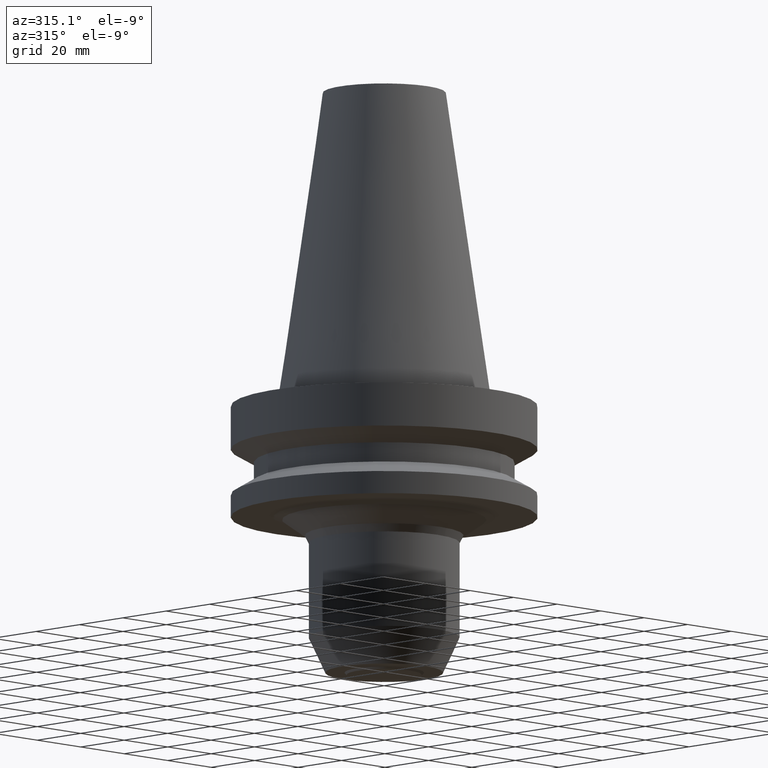
[diagram: clean part render]
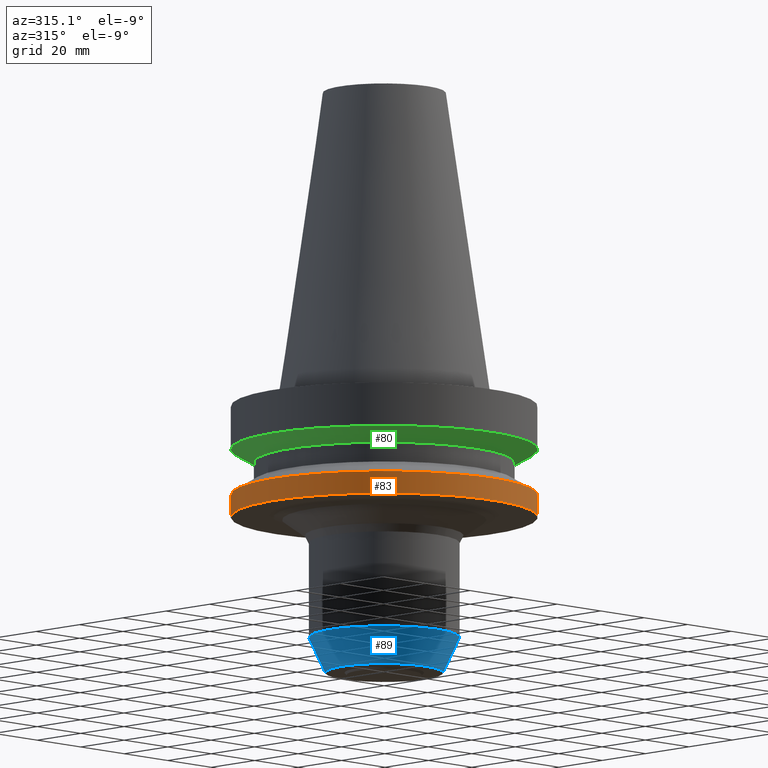
[diagram: same view with three faces highlighted in distinct colors, each labeled with its STEP entity id]
A machine part, auxiliary view with three faces highlighted in distinct colors.
Their STEP definitions:

[orange] entity #83 — the highlighted cylindrical surface (bore or boss wall) has radius 50 mm, axis along (-0, -0, 1).
#83=ADVANCED_FACE('',(#117,#118),#119,.T.);
#117=FACE_BOUND('',#169,.T.);
#118=FACE_BOUND('',#170,.T.);
#119=CYLINDRICAL_SURFACE('',#171,50.0);
#169=EDGE_LOOP('',(#237));
#170=EDGE_LOOP('',(#238));
#171=AXIS2_PLACEMENT_3D('',#239,#240,#241);
#237=ORIENTED_EDGE('',*,*,#294,.F.);
#238=ORIENTED_EDGE('',*,*,#293,.T.);
#239=CARTESIAN_POINT('',(2.10333087753558E-015,4.20666175507116E-015,-34.35));
#240=DIRECTION('',(-6.12323399573677E-017,-1.22464679914735E-016,1.0));
#241=DIRECTION('',(-1.23259516440783E-032,1.0,1.22464679914735E-016));
#293=EDGE_CURVE('',#317,#317,#318,.T.);
#294=EDGE_CURVE('',#319,#319,#320,.T.);
#317=VERTEX_POINT('',#351);
#318=CIRCLE('',#352,50.0);
#319=VERTEX_POINT('',#353);
#320=CIRCLE('',#354,50.0);
#351=CARTESIAN_POINT('',(1.87983283669118E-015,50.0,-30.7));
#352=AXIS2_PLACEMENT_3D('',#392,#393,#394);
#353=CARTESIAN_POINT('',(2.32682891837997E-015,50.0,-38.0));
#354=AXIS2_PLACEMENT_3D('',#395,#396,#397);
#392=CARTESIAN_POINT('',(1.87983283669118E-015,3.75966567338237E-015,-30.7));
#393=DIRECTION('',(6.12323399573677E-017,1.22464679914735E-016,-1.0));
#394=DIRECTION('',(-1.23259516440783E-032,1.0,1.22464679914735E-016));
#395=CARTESIAN_POINT('',(2.32682891837997E-015,4.65365783675994E-015,-38.0));
#396=DIRECTION('',(6.12323399573677E-017,1.22464679914735E-016,-1.0));
#397=DIRECTION('',(-1.23259516440783E-032,1.0,1.22464679914735E-016));

[blue] entity #89 — the highlighted conical surface has half-angle 25 deg.
#89=ADVANCED_FACE('',(#135,#136),#137,.T.);
#135=FACE_BOUND('',#187,.T.);
#136=FACE_BOUND('',#188,.T.);
#137=CONICAL_SURFACE('',#189,21.9000000000018,0.436332312998567);
#187=EDGE_LOOP('',(#267));
#188=EDGE_LOOP('',(#268));
#189=AXIS2_PLACEMENT_3D('',#269,#270,#271);
#267=ORIENTED_EDGE('',*,*,#300,.F.);
#268=ORIENTED_EDGE('',*,*,#299,.T.);
#269=CARTESIAN_POINT('',(5.11350238083917E-015,1.02270047616783E-014,-83.5098313146188));
#270=DIRECTION('',(-6.12323399573677E-017,-1.22464679914735E-016,1.0));
#271=DIRECTION('',(-1.23259516440783E-032,1.0,1.22464679914735E-016));
#299=EDGE_CURVE('',#329,#329,#330,.T.);
#300=EDGE_CURVE('',#331,#331,#332,.T.);
#329=VERTEX_POINT('',#363);
#330=CIRCLE('',#364,24.6000000000029);
#331=VERTEX_POINT('',#365);
#332=CIRCLE('',#366,19.2000000000007);
#363=CARTESIAN_POINT('',(4.75895680348557E-015,24.600000000003,-77.7196626292404));
#364=AXIS2_PLACEMENT_3D('',#410,#411,#412);
#365=CARTESIAN_POINT('',(5.46804795819276E-015,19.2000000000007,-89.2999999999972));
#366=AXIS2_PLACEMENT_3D('',#413,#414,#415);
#410=CARTESIAN_POINT('',(4.75895680348557E-015,9.51791360697114E-015,-77.7196626292404));
#411=DIRECTION('',(6.12323399573677E-017,1.22464679914735E-016,-1.0));
#412=DIRECTION('',(-1.23259516440783E-032,1.0,1.22464679914735E-016));
#413=CARTESIAN_POINT('',(5.46804795819276E-015,1.09360959163855E-014,-89.2999999999972));
#414=DIRECTION('',(6.12323399573676E-017,1.22464679914735E-016,-1.0));
#415=DIRECTION('',(-1.23259516440783E-032,1.0,1.22464679914735E-016));

[green] entity #80 — the highlighted conical surface has half-angle 60 deg.
#80=ADVANCED_FACE('',(#108,#109),#110,.T.);
#108=FACE_BOUND('',#160,.T.);
#109=FACE_BOUND('',#161,.T.);
#110=CONICAL_SURFACE('',#162,46.25,1.0471975511966);
#160=EDGE_LOOP('',(#222));
#161=EDGE_LOOP('',(#223));
#162=AXIS2_PLACEMENT_3D('',#224,#225,#226);
#222=ORIENTED_EDGE('',*,*,#291,.F.);
#223=ORIENTED_EDGE('',*,*,#290,.T.);
#224=CARTESIAN_POINT('',(1.09391964217128E-015,2.18783928434257E-015,-17.8650635094611));
#225=DIRECTION('',(-6.12323399573676E-017,-1.22464679914735E-016,1.0));
#226=DIRECTION('',(-1.23259516440783E-032,1.0,1.22464679914735E-016));
#290=EDGE_CURVE('',#311,#311,#312,.T.);
#291=EDGE_CURVE('',#313,#313,#314,.T.);
#311=VERTEX_POINT('',#345);
#312=CIRCLE('',#346,50.0);
#313=VERTEX_POINT('',#347);
#314=CIRCLE('',#348,42.5);
#345=CARTESIAN_POINT('',(9.61347737330669E-016,50.0,-15.7));
#346=AXIS2_PLACEMENT_3D('',#383,#384,#385);
#347=CARTESIAN_POINT('',(1.2264915470119E-015,42.5,-20.0301270189222));
#348=AXIS2_PLACEMENT_3D('',#386,#387,#388);
#383=CARTESIAN_POINT('',(9.6134773733067E-016,1.92269547466134E-015,-15.7));
#384=DIRECTION('',(6.12323399573677E-017,1.22464679914735E-016,-1.0));
#385=DIRECTION('',(-1.23259516440783E-032,1.0,1.22464679914735E-016));
#386=CARTESIAN_POINT('',(1.2264915470119E-015,2.4529830940238E-015,-20.0301270189222));
#387=DIRECTION('',(6.12323399573677E-017,1.22464679914735E-016,-1.0));
#388=DIRECTION('',(-1.23259516440783E-032,1.0,1.22464679914735E-016));